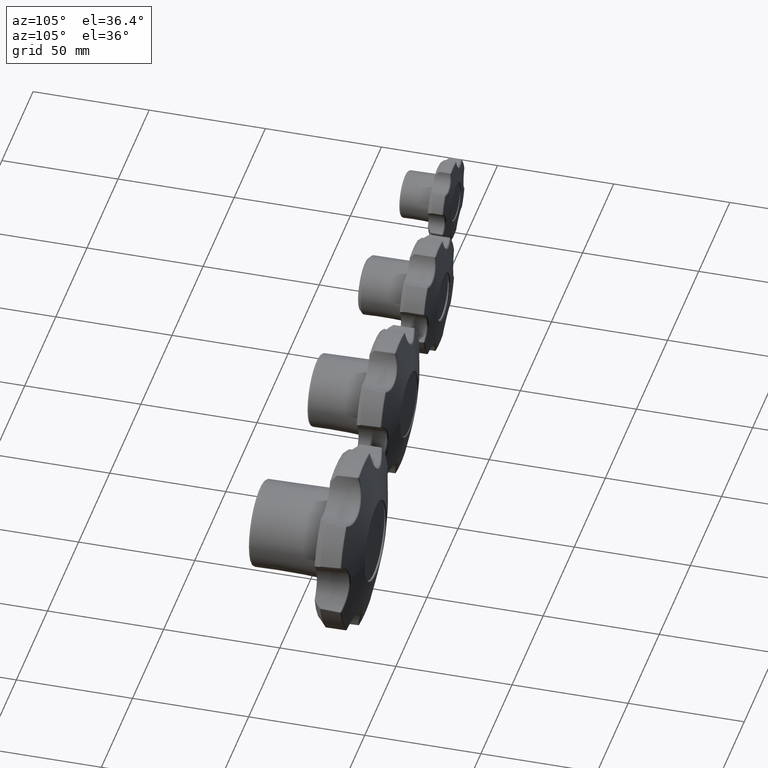
[diagram: clean part render]
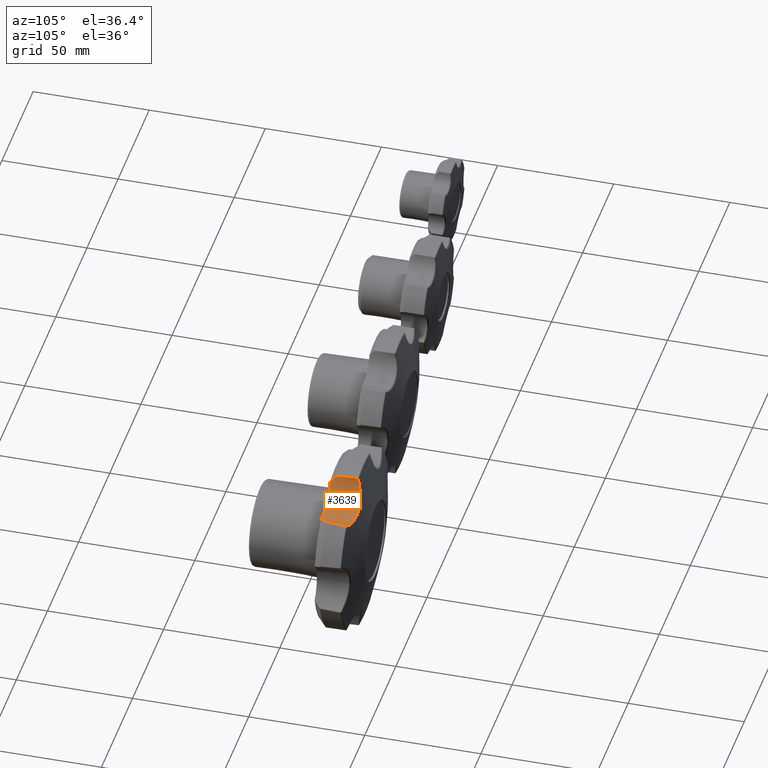
[diagram: same view with one face highlighted and labeled with its STEP entity id]
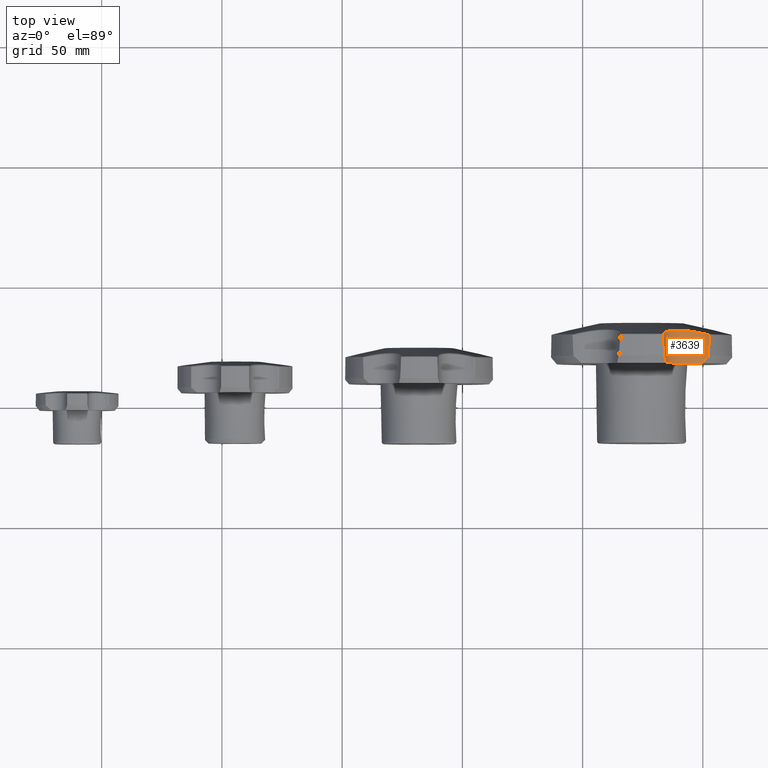
[diagram: same view with one face highlighted and labeled with its STEP entity id]
A machine part, auxiliary view. The second image highlights one B-rep face of the part: STEP entity #3639.
A second angle (top view) of the same face is appended — the face is thin or edge-on in the first view.
In plain terms, the highlighted face is a freeform B-spline surface patch.
Its self-contained STEP definition (entity closure, byte-faithful):
#38=(
BOUNDED_SURFACE()
B_SPLINE_SURFACE(1,2,((#8798,#8799,#8800,#8801,#8802),(#8803,#8804,#8805,
#8806,#8807)),.UNSPECIFIED.,.F.,.F.,.F.)
B_SPLINE_SURFACE_WITH_KNOTS((2,2),(3,2,3),(0.218552574980022,1.32552465717466),
(-2.67163361584456,-1.57079632679489,-0.469959037745168),.UNSPECIFIED.)
GEOMETRIC_REPRESENTATION_ITEM()
RATIONAL_B_SPLINE_SURFACE(((1.,0.852305627211195,1.,0.852305627211195,1.),
(1.,0.852305627211195,1.,0.852305627211195,1.)))
REPRESENTATION_ITEM('')
SURFACE()
);
#429=B_SPLINE_CURVE_WITH_KNOTS('',3,(#8736,#8737,#8738,#8739),
 .UNSPECIFIED.,.F.,.F.,(4,4),(0.309131488160496,1.21275569496348),
 .UNSPECIFIED.);
#431=B_SPLINE_CURVE_WITH_KNOTS('',3,(#8789,#8790,#8791,#8792,#8793,#8794,
#8795,#8796),.UNSPECIFIED.,.F.,.F.,(4,1,1,1,1,4),(0.456188802533296,0.868830153326659,
1.69411285491338,2.10675420570675,2.51939555650011,3.34467825808683),
 .UNSPECIFIED.);
#432=B_SPLINE_CURVE_WITH_KNOTS('',3,(#8809,#8810,#8811,#8812,#8813,#8814),
 .UNSPECIFIED.,.F.,.F.,(4,2,4),(5.49296562076012,5.6085232718232,5.85636648522314),
 .UNSPECIFIED.);
#433=B_SPLINE_CURVE_WITH_KNOTS('',3,(#8818,#8819,#8820,#8821,#8822,#8823),
 .UNSPECIFIED.,.F.,.F.,(4,2,4),(7.90539147048942,8.15323468388935,8.26879233495243),
 .UNSPECIFIED.);
#434=B_SPLINE_CURVE_WITH_KNOTS('',3,(#8824,#8825,#8826,#8827),
 .UNSPECIFIED.,.F.,.F.,(4,4),(0.,0.903624206825463),.UNSPECIFIED.);
#824=FACE_OUTER_BOUND('',#1110,.T.);
#1110=EDGE_LOOP('',(#3267,#3268,#3269,#3270,#3271,#3272));
#1416=CIRCLE('',#4122,11.8827744486963);
#1746=VERTEX_POINT('',#8724);
#1747=VERTEX_POINT('',#8735);
#1748=VERTEX_POINT('',#8788);
#1749=VERTEX_POINT('',#8808);
#1750=VERTEX_POINT('',#8815);
#1751=VERTEX_POINT('',#8817);
#2263=EDGE_CURVE('',#1746,#1747,#429,.T.);
#2267=EDGE_CURVE('',#1747,#1748,#431,.T.);
#2269=EDGE_CURVE('',#1746,#1749,#432,.T.);
#2270=EDGE_CURVE('',#1750,#1749,#1416,.T.);
#2271=EDGE_CURVE('',#1750,#1751,#433,.T.);
#2272=EDGE_CURVE('',#1748,#1751,#434,.T.);
#3267=ORIENTED_EDGE('',*,*,#2263,.F.);
#3268=ORIENTED_EDGE('',*,*,#2269,.T.);
#3269=ORIENTED_EDGE('',*,*,#2270,.F.);
#3270=ORIENTED_EDGE('',*,*,#2271,.T.);
#3271=ORIENTED_EDGE('',*,*,#2272,.F.);
#3272=ORIENTED_EDGE('',*,*,#2267,.F.);
#3639=ADVANCED_FACE('',(#824),#38,.T.);
#4122=AXIS2_PLACEMENT_3D('',#8816,#5128,#5129);
#5128=DIRECTION('center_axis',(0.,1.,0.));
#5129=DIRECTION('ref_axis',(0.866980860244159,0.,-0.498341437139537));
#8724=CARTESIAN_POINT('',(9.64365822455045,2.61318210745897,37.6476663229685));
#8735=CARTESIAN_POINT('',(9.08676711298597,11.6304829074159,37.7586427768638));
#8736=CARTESIAN_POINT('Ctrl Pts',(9.64365822455045,2.61318210745897,37.6476663229685));
#8737=CARTESIAN_POINT('Ctrl Pts',(9.45484244254691,5.61870172926965,37.6866329026619));
#8738=CARTESIAN_POINT('Ctrl Pts',(9.26937247455155,8.62448419128657,37.7235409337366));
#8739=CARTESIAN_POINT('Ctrl Pts',(9.08676711298597,11.6304829074159,37.7586427768638));
#8788=CARTESIAN_POINT('',(28.1565603006928,11.6304829074159,26.7486925465507));
#8789=CARTESIAN_POINT('Ctrl Pts',(9.08676711298598,11.6304829074158,37.758642776864));
#8790=CARTESIAN_POINT('Ctrl Pts',(8.99696426571181,11.9308950252839,36.4706522186298));
#8791=CARTESIAN_POINT('Ctrl Pts',(9.30881965723898,12.8131299435255,32.5598672097166));
#8792=CARTESIAN_POINT('Ctrl Pts',(12.2030533683903,13.6744825622336,27.8667283565288));
#8793=CARTESIAN_POINT('Ctrl Pts',(16.8666772055342,13.6732988273976,25.1846354915808));
#8794=CARTESIAN_POINT('Ctrl Pts',(22.1022677410643,13.1014467558776,24.1506491201386));
#8795=CARTESIAN_POINT('Ctrl Pts',(26.0155095215247,12.2313039272255,25.3051666207227));
#8796=CARTESIAN_POINT('Ctrl Pts',(28.156560300693,11.6304829074158,26.7486925465509));
#8798=CARTESIAN_POINT('Ctrl Pts',(8.93672087039754,13.9886085776769,37.6634938628105));
#8799=CARTESIAN_POINT('Ctrl Pts',(8.53554901761093,13.6557436686573,30.0537453271681));
#8800=CARTESIAN_POINT('Ctrl Pts',(15.1475407205,13.6557436686573,26.2363101376254));
#8801=CARTESIAN_POINT('Ctrl Pts',(21.7595324233895,13.6557436686573,22.4188749480824));
#8802=CARTESIAN_POINT('Ctrl Pts',(28.1491820452744,13.9886085776769,26.5711742317001));
#8803=CARTESIAN_POINT('Ctrl Pts',(9.81807039436507,0.137325792536083,38.2223845665043));
#8804=CARTESIAN_POINT('Ctrl Pts',(9.43439688901061,-0.181020187038311,30.9445586790313));
#8805=CARTESIAN_POINT('Ctrl Pts',(15.7579861847219,-0.181020187038313,27.2936326969076));
#8806=CARTESIAN_POINT('Ctrl Pts',(22.0815754804336,-0.181020187038315,23.6427067147837));
#8807=CARTESIAN_POINT('Ctrl Pts',(28.1925208306285,0.137325792536095,27.6138906609162));
#8808=CARTESIAN_POINT('',(10.1350787342794,0.,34.804348565229));
#8809=CARTESIAN_POINT('Ctrl Pts',(9.64365822455045,2.61318210745897,37.6476663229685));
#8810=CARTESIAN_POINT('Ctrl Pts',(9.65702263013701,2.32656978428232,37.3483768909744));
#8811=CARTESIAN_POINT('Ctrl Pts',(9.68242800686578,2.04119817977617,37.0469889531385));
#8812=CARTESIAN_POINT('Ctrl Pts',(9.80123267758708,1.15319840925644,36.0970169917305));
#8813=CARTESIAN_POINT('Ctrl Pts',(9.93948397848681,0.561114281414011,35.4457270673834));
#8814=CARTESIAN_POINT('Ctrl Pts',(10.1350787342794,-1.33226762955019E-14,
34.804348565229));
#8815=CARTESIAN_POINT('',(25.0739106525171,0.,26.1794099358559));
#8816=CARTESIAN_POINT('Origin',(21.6913872243481,0.,37.5705847592214));
#8817=CARTESIAN_POINT('',(27.7820063166154,2.61318210745896,27.1754861693597));
#8818=CARTESIAN_POINT('Ctrl Pts',(25.0739106525171,-1.56819002228303E-14,
26.1794099358559));
#8819=CARTESIAN_POINT('Ctrl Pts',(25.7271581067203,0.561114281414009,26.3307091595697));
#8820=CARTESIAN_POINT('Ctrl Pts',(26.3603173768836,1.15319840925644,26.5366249830579));
#8821=CARTESIAN_POINT('Ctrl Pts',(27.2424195637065,2.04119817977617,26.908723100829));
#8822=CARTESIAN_POINT('Ctrl Pts',(27.516131862631,2.32656978428232,27.0374153681071));
#8823=CARTESIAN_POINT('Ctrl Pts',(27.7820063166154,2.61318210745896,27.1754861693597));
#8824=CARTESIAN_POINT('Ctrl Pts',(28.1565603006928,11.6304829074159,26.7486925465507));
#8825=CARTESIAN_POINT('Ctrl Pts',(28.0348585320392,8.62448419121179,26.8892825069737));
#8826=CARTESIAN_POINT('Ctrl Pts',(27.9101602555356,5.61870172939439,27.0314501953499));
#8827=CARTESIAN_POINT('Ctrl Pts',(27.7820063166154,2.61318210745896,27.1754861693597));